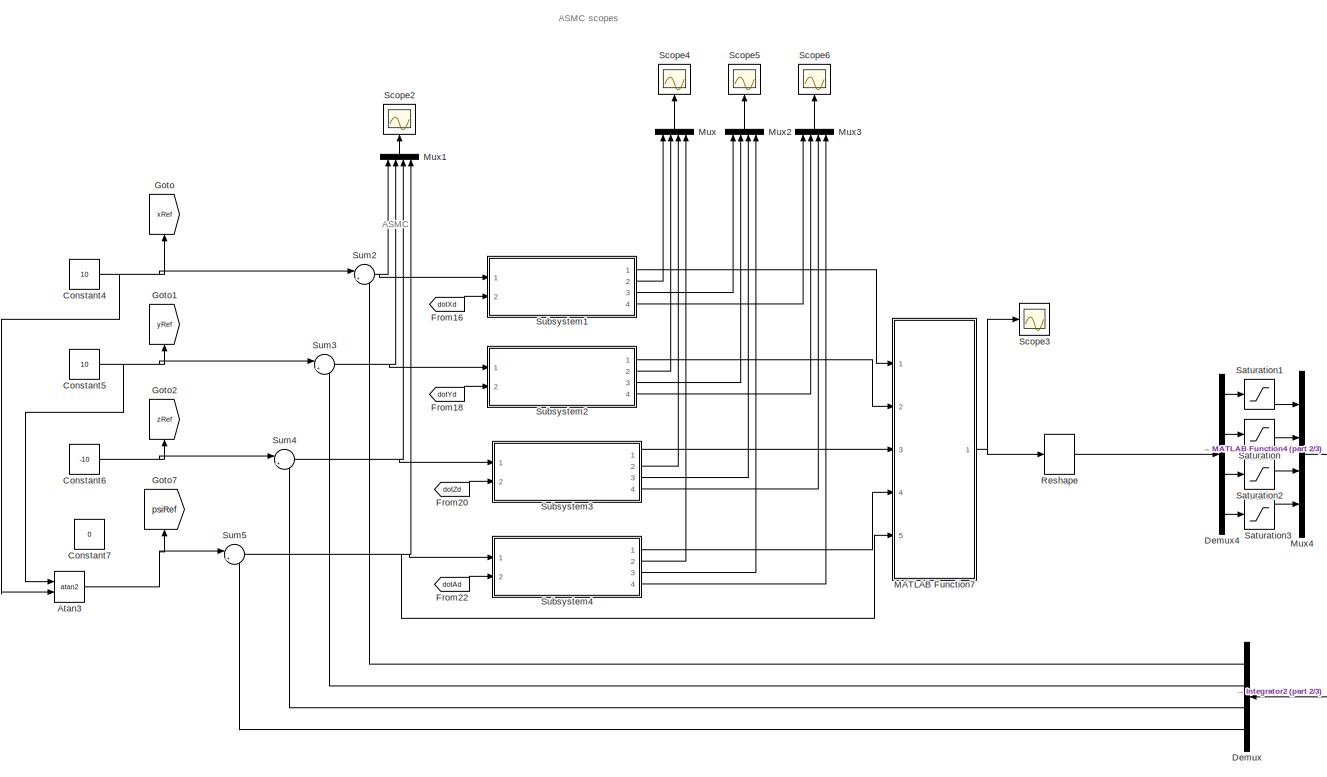
[diagram: root canvas - part 1/3, center side, full height]
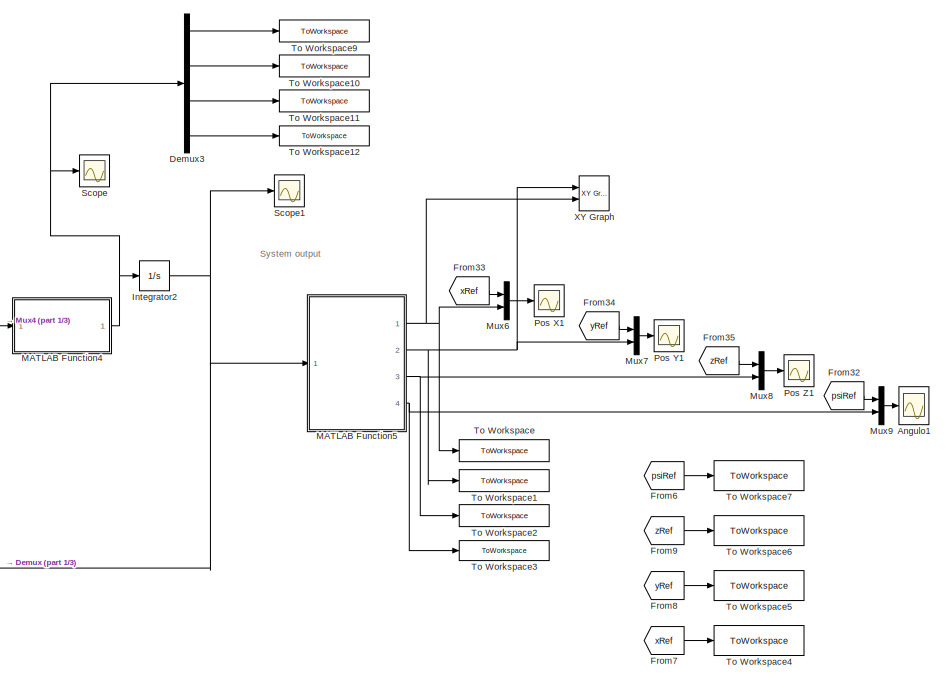
[diagram: root canvas - part 2/3, right side, full height]
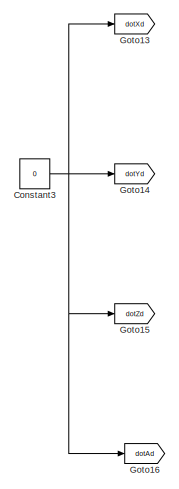
[diagram: root canvas - part 3/3, bottom left region]
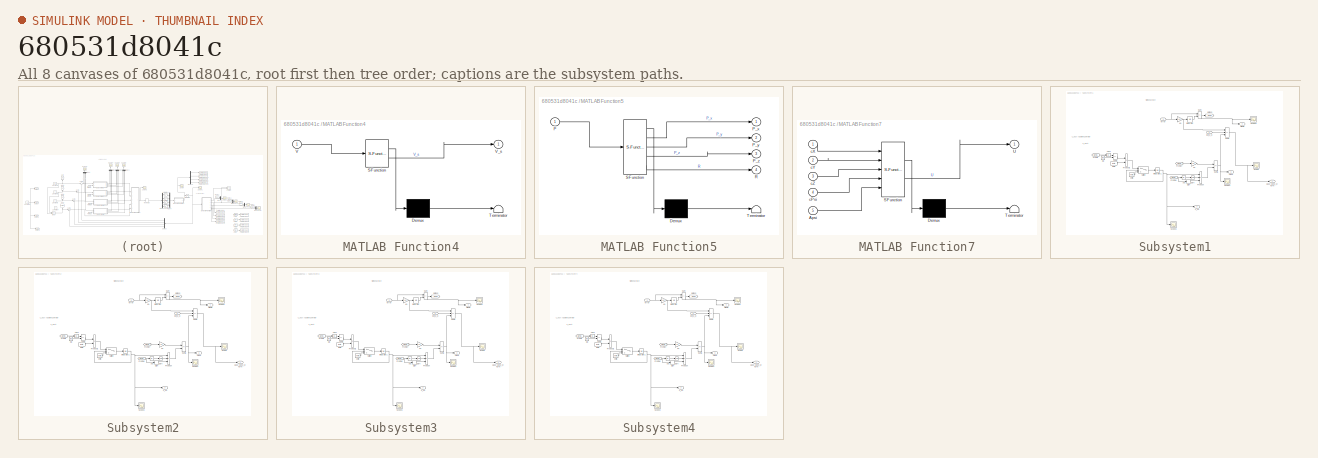
[diagram: thumbnail index - all 8 canvases of the model, root first then tree order]
MODEL slx_680531d8041c
KIND model
CONFIG AbsTol = auto
CONFIG EnableMultiTasking = off
CONFIG FixedStep = 0.001
CONFIG MaxStep = auto
CONFIG MinStep = auto
CONFIG RelTol = 1e-3
CONFIG SampleTimeConstraint = Unconstrained
CONFIG Solver = ode1
CONFIG SolverName = ode1
CONFIG StartTime = 0.0
CONFIG StopTime = 50
BLOCK [Scope] Angulo1
  Floating = off
  NumInputPorts = 1
  Ports = [1]
  ScopeSpecificationString = Simulink.scopes.TimeScopeBlockCfg('CurrentConfiguration', extmgr.ConfigurationSet(extmgr.Configuration('Core','General UI',true),extmgr.Configuration('Core','Source UI',true),extmgr.Configuration('Sources','WiredSimulink',true,'DataLoggingVariableName','ScopeData4'),extmgr.Configuration('Visuals','Time Domain',true,'SerializedDisplays',{struct('MinYLimReal','-0.09866','MaxYLimReal','0.88792','YLab...<+1540ch>
BLOCK [Trigonometry] Atan3
  Operator = atan2
  Ports = [2, 1]
BLOCK [Constant] Constant3
  Value = 0
BLOCK [Constant] Constant4
  Value = 10
BLOCK [Constant] Constant5
  Value = 10
BLOCK [Constant] Constant6
  Value = -10
BLOCK [Constant] Constant7
  Commented = on
  Value = 0
BLOCK [Demux] Demux
  Ports = [1, 4]
BLOCK [Demux] Demux3
  Ports = [1, 4]
BLOCK [Demux] Demux4
  Ports = [1, 4]
BLOCK [From] From16
  GotoTag = dotXd
BLOCK [From] From18
  GotoTag = dotYd
BLOCK [From] From20
  GotoTag = dotZd
BLOCK [From] From22
  GotoTag = dotAd
BLOCK [From] From32
  GotoTag = psiRef
BLOCK [From] From33
  GotoTag = xRef
BLOCK [From] From34
  GotoTag = yRef
BLOCK [From] From35
  GotoTag = zRef
BLOCK [From] From6
  GotoTag = psiRef
BLOCK [From] From7
  GotoTag = xRef
BLOCK [From] From8
  GotoTag = yRef
BLOCK [From] From9
  GotoTag = zRef
BLOCK [Goto] Goto
  GotoTag = xRef
  NameLocation = right
BLOCK [Goto] Goto1
  GotoTag = yRef
  NameLocation = right
BLOCK [Goto] Goto13
  GotoTag = dotXd
BLOCK [Goto] Goto14
  GotoTag = dotYd
BLOCK [Goto] Goto15
  GotoTag = dotZd
BLOCK [Goto] Goto16
  GotoTag = dotAd
BLOCK [Goto] Goto2
  GotoTag = zRef
  NameLocation = right
BLOCK [Goto] Goto7
  GotoTag = psiRef
  NameLocation = right
BLOCK [Integrator] Integrator2
  Ports = [1, 1]
BLOCK [SubSystem] MATLAB Function4
  ErrorFcn = Stateflow.Translate.translate
  MinAlgLoopOccurrences = on
  PermitHierarchicalResolution = ExplicitOnly
  Ports = [1, 1]
  RequestExecContextInheritance = off
  SFBlockType = MATLAB Function
  TreatAsAtomicUnit = on
BLOCK [Demux] MATLAB Function4/ Demux 
  Outputs = 1
  Ports = [1, 1]
BLOCK [S-Function] MATLAB Function4/ SFunction 
  EnableBusSupport = on
  FunctionName = sf_sfun
  PortCounts = [1 2]
  Ports = [1, 2]
  SFcnIsStateOwnerBlock = off
  SFunctionDeploymentMode = off
  Tag = Stateflow S-Function 5
BLOCK [Terminator] MATLAB Function4/ Terminator 
BLOCK [Inport] MATLAB Function4/V
BLOCK [Outport] MATLAB Function4/V_s
BLOCK [SubSystem] MATLAB Function5
  ErrorFcn = Stateflow.Translate.translate
  PermitHierarchicalResolution = ExplicitOnly
  Ports = [1, 4]
  RequestExecContextInheritance = off
  SFBlockType = MATLAB Function
  TreatAsAtomicUnit = on
BLOCK [Demux] MATLAB Function5/ Demux 
  Outputs = 1
  Ports = [1, 1]
BLOCK [S-Function] MATLAB Function5/ SFunction 
  EnableBusSupport = on
  FunctionName = sf_sfun
  PortCounts = [1 5]
  Ports = [1, 5]
  SFcnIsStateOwnerBlock = off
  SFunctionDeploymentMode = off
  Tag = Stateflow S-Function 6
BLOCK [Terminator] MATLAB Function5/ Terminator 
BLOCK [Inport] MATLAB Function5/P
BLOCK [Outport] MATLAB Function5/P_x
BLOCK [Outport] MATLAB Function5/P_y
  Port = 2
BLOCK [Outport] MATLAB Function5/P_z
  Port = 3
BLOCK [Outport] MATLAB Function5/R
  Port = 4
BLOCK [SubSystem] MATLAB Function7
  ErrorFcn = Stateflow.Translate.translate
  MinAlgLoopOccurrences = on
  PermitHierarchicalResolution = ExplicitOnly
  Ports = [5, 1]
  RequestExecContextInheritance = off
  SFBlockType = MATLAB Function
  TreatAsAtomicUnit = on
BLOCK [Demux] MATLAB Function7/ Demux 
  Outputs = 1
  Ports = [1, 1]
BLOCK [S-Function] MATLAB Function7/ SFunction 
  EnableBusSupport = on
  FunctionName = sf_sfun
  PortCounts = [5 2]
  Ports = [5, 2]
  SFcnIsStateOwnerBlock = off
  SFunctionDeploymentMode = off
  Tag = Stateflow S-Function 7
BLOCK [Terminator] MATLAB Function7/ Terminator 
BLOCK [Inport] MATLAB Function7/Apsi
  Port = 5
BLOCK [Outport] MATLAB Function7/U
BLOCK [Inport] MATLAB Function7/cPsi
  Port = 4
BLOCK [Inport] MATLAB Function7/cX
BLOCK [Inport] MATLAB Function7/cY
  Port = 2
BLOCK [Inport] MATLAB Function7/cZ
  Port = 3
BLOCK [Mux] Mux
  DisplayOption = bar
  NameLocation = right
  Ports = [4, 1]
BLOCK [Mux] Mux1
  DisplayOption = bar
  NameLocation = right
  Ports = [4, 1]
BLOCK [Mux] Mux2
  DisplayOption = bar
  NameLocation = right
  Ports = [4, 1]
BLOCK [Mux] Mux3
  DisplayOption = bar
  NameLocation = right
  Ports = [4, 1]
BLOCK [Mux] Mux4
  DisplayOption = bar
  Ports = [4, 1]
BLOCK [Mux] Mux6
  DisplayOption = bar
  Inputs = 2
  Ports = [2, 1]
BLOCK [Mux] Mux7
  DisplayOption = bar
  Inputs = 2
  Ports = [2, 1]
BLOCK [Mux] Mux8
  DisplayOption = bar
  Inputs = 2
  Ports = [2, 1]
BLOCK [Mux] Mux9
  DisplayOption = bar
  Inputs = 2
  Ports = [2, 1]
BLOCK [Scope] Pos X1
  Floating = off
  NumInputPorts = 1
  Ports = [1]
  ScopeSpecificationString = Simulink.scopes.TimeScopeBlockCfg('CurrentConfiguration', extmgr.ConfigurationSet(extmgr.Configuration('Core','General UI',true),extmgr.Configuration('Core','Source UI',true),extmgr.Configuration('Sources','WiredSimulink',true,'DataLoggingVariableName','ScopeData1'),extmgr.Configuration('Visuals','Time Domain',true,'SerializedDisplays',{struct('MinYLimReal','-1.25917','MaxYLimReal','11.33253','YLa...<+1537ch>
BLOCK [Scope] Pos Y1
  Floating = off
  NumInputPorts = 1
  Ports = [1]
  ScopeSpecificationString = Simulink.scopes.TimeScopeBlockCfg('CurrentConfiguration', extmgr.ConfigurationSet(extmgr.Configuration('Core','General UI',true),extmgr.Configuration('Core','Source UI',true),extmgr.Configuration('Sources','WiredSimulink',true,'DataLoggingVariableName','ScopeData2'),extmgr.Configuration('Visuals','Time Domain',true,'SerializedDisplays',{struct('MinYLimReal','-1.26114','MaxYLimReal','11.35028','YLa...<+1538ch>
BLOCK [Scope] Pos Z1
  Floating = off
  NumInputPorts = 1
  Ports = [1]
  ScopeSpecificationString = Simulink.scopes.TimeScopeBlockCfg('CurrentConfiguration', extmgr.ConfigurationSet(extmgr.Configuration('Core','General UI',true),extmgr.Configuration('Core','Source UI',true),extmgr.Configuration('Sources','WiredSimulink',true,'DataLoggingVariableName','ScopeData3'),extmgr.Configuration('Visuals','Time Domain',true,'SerializedDisplays',{struct('MinYLimReal','-11.35196','MaxYLimReal','1.26133','YLa...<+1523ch>
BLOCK [Reshape] Reshape
  OutputDimensionality = Customize
  OutputDimensions = [4,1]
  Ports = [1, 1]
BLOCK [Saturate] Saturation
  LowerLimit = -1.5
  UpperLimit = 1.5
BLOCK [Saturate] Saturation1
  LowerLimit = -0.94
  UpperLimit = 0.94
BLOCK [Saturate] Saturation2
  LowerLimit = -0.66
  UpperLimit = 0.671
BLOCK [Saturate] Saturation3
  LowerLimit = -4.245
  UpperLimit = 4.245
BLOCK [Scope] Scope
  Floating = off
  NumInputPorts = 1
  Ports = [1]
  ScopeSpecificationString = Simulink.scopes.TimeScopeBlockCfg('CurrentConfiguration', extmgr.ConfigurationSet(extmgr.Configuration('Core','General UI',true),extmgr.Configuration('Core','Source UI',true),extmgr.Configuration('Sources','WiredSimulink',true,'DataLoggingVariableName','ScopeData1'),extmgr.Configuration('Visuals','Time Domain',true,'SerializedDisplays',{struct('MinYLimReal','-0.91318','MaxYLimReal','1.61861','YLab...<+1563ch>
BLOCK [Scope] Scope1
  Floating = off
  NumInputPorts = 1
  Ports = [1]
  ScopeSpecificationString = Simulink.scopes.TimeScopeBlockCfg('CurrentConfiguration', extmgr.ConfigurationSet(extmgr.Configuration('Core','General UI',true),extmgr.Configuration('Core','Source UI',true),extmgr.Configuration('Sources','WiredSimulink',true,'DataLoggingVariableName','ScopeData2'),extmgr.Configuration('Visuals','Time Domain',true,'SerializedDisplays',{struct('MinYLimReal','-12.61519','MaxYLimReal','12.63038','YL...<+1570ch>
BLOCK [Scope] Scope2
  Floating = off
  NameLocation = right
  NumInputPorts = 1
  Ports = [1]
  ScopeSpecificationString = Simulink.scopes.TimeScopeBlockCfg('CurrentConfiguration', extmgr.ConfigurationSet(extmgr.Configuration('Core','General UI',true),extmgr.Configuration('Core','Source UI',true),extmgr.Configuration('Sources','WiredSimulink',true,'DataLoggingVariableName','ScopeData1'),extmgr.Configuration('Visuals','Time Domain',true,'SerializedDisplays',{struct('MinYLimReal','-12.5','MaxYLimReal','12.5','YLabelReal...<+1542ch>
BLOCK [Scope] Scope3
  Floating = off
  NumInputPorts = 1
  Ports = [1]
  ScopeSpecificationString = Simulink.scopes.TimeScopeBlockCfg('CurrentConfiguration', extmgr.ConfigurationSet(extmgr.Configuration('Core','General UI',true),extmgr.Configuration('Core','Source UI',true),extmgr.Configuration('Sources','WiredSimulink',true,'DataLoggingVariableName','ScopeData2'),extmgr.Configuration('Visuals','Time Domain',true,'SerializedDisplays',{struct('MinYLimReal','-1.86856','MaxYLimReal','2.205','YLabel...<+1555ch>
BLOCK [Scope] Scope4
  Floating = off
  NameLocation = right
  NumInputPorts = 1
  Ports = [1]
  ScopeSpecificationString = Simulink.scopes.TimeScopeBlockCfg('CurrentConfiguration', extmgr.ConfigurationSet(extmgr.Configuration('Core','General UI',true),extmgr.Configuration('Core','Source UI',true),extmgr.Configuration('Sources','WiredSimulink',true,'DataLoggingVariableName','ScopeData1'),extmgr.Configuration('Visuals','Time Domain',true,'SerializedDisplays',{struct('MinYLimReal','-0.10773','MaxYLimReal','0.96953','YLab...<+1560ch>
BLOCK [Scope] Scope5
  Floating = off
  NameLocation = right
  NumInputPorts = 1
  Ports = [1]
  ScopeSpecificationString = Simulink.scopes.TimeScopeBlockCfg('CurrentConfiguration', extmgr.ConfigurationSet(extmgr.Configuration('Core','General UI',true),extmgr.Configuration('Core','Source UI',true),extmgr.Configuration('Sources','WiredSimulink',true,'DataLoggingVariableName','ScopeData2'),extmgr.Configuration('Visuals','Time Domain',true,'SerializedDisplays',{struct('MinYLimReal','-2.2112','MaxYLimReal','1.864','YLabelR...<+1555ch>
BLOCK [Scope] Scope6
  Floating = off
  NameLocation = right
  NumInputPorts = 1
  Ports = [1]
  ScopeSpecificationString = Simulink.scopes.TimeScopeBlockCfg('CurrentConfiguration', extmgr.ConfigurationSet(extmgr.Configuration('Core','General UI',true),extmgr.Configuration('Core','Source UI',true),extmgr.Configuration('Sources','WiredSimulink',true,'DataLoggingVariableName','ScopeData3'),extmgr.Configuration('Visuals','Time Domain',true,'SerializedDisplays',{struct('MinYLimReal','-12.50075','MaxYLimReal','12.50671','YL...<+1550ch>
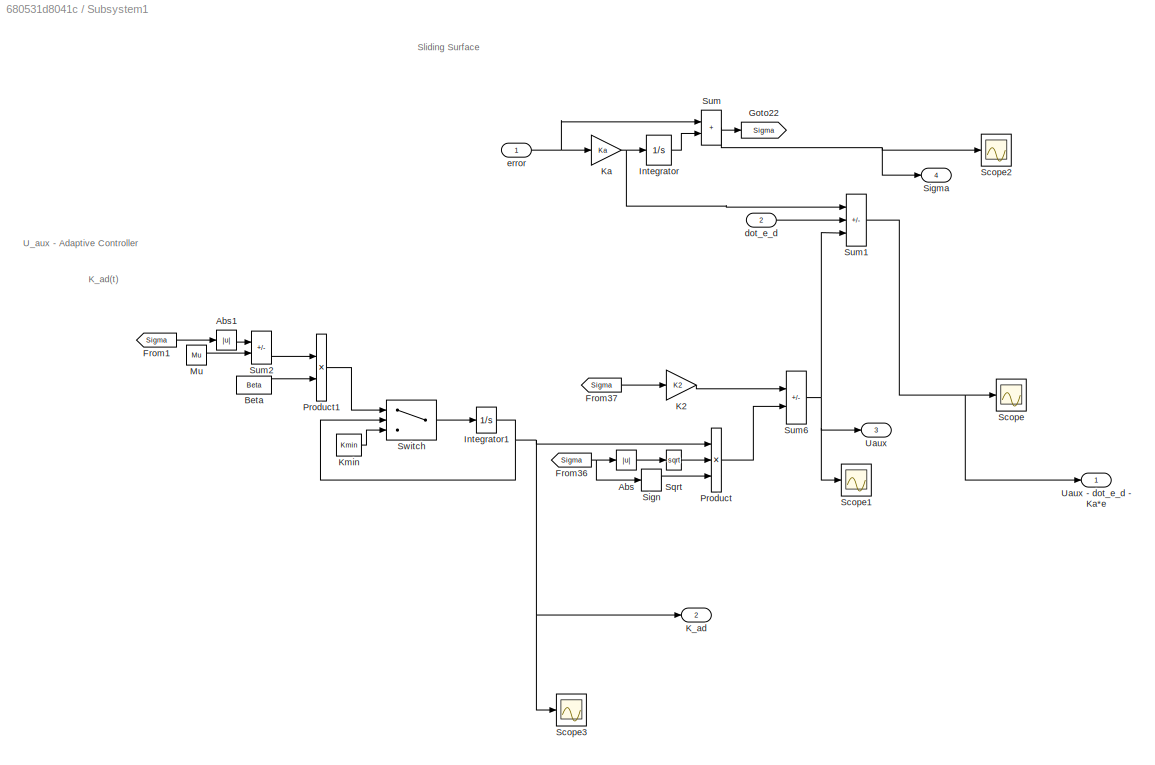
BLOCK [SubSystem] Subsystem1
  Ports = [2, 4]
  RequestExecContextInheritance = off
BLOCK [Abs] Subsystem1/Abs
  SaturateOnIntegerOverflow = off
BLOCK [Abs] Subsystem1/Abs1
  SaturateOnIntegerOverflow = off
BLOCK [Constant] Subsystem1/Beta
  Value = Beta
BLOCK [From] Subsystem1/From1
  GotoTag = Sigma
BLOCK [From] Subsystem1/From36
  GotoTag = Sigma
BLOCK [From] Subsystem1/From37
  GotoTag = Sigma
BLOCK [Goto] Subsystem1/Goto22
  GotoTag = Sigma
BLOCK [Integrator] Subsystem1/Integrator
  Ports = [1, 1]
BLOCK [Integrator] Subsystem1/Integrator1
  Ports = [1, 1]
BLOCK [Gain] Subsystem1/K2
  Gain = K2
BLOCK [Outport] Subsystem1/K_ad
  Port = 2
BLOCK [Gain] Subsystem1/Ka
  Gain = Ka
BLOCK [Constant] Subsystem1/Kmin
  Value = Kmin
BLOCK [Constant] Subsystem1/Mu
  Value = Mu
BLOCK [Product] Subsystem1/Product
  Inputs = 3
  Ports = [3, 1]
BLOCK [Product] Subsystem1/Product1
  Ports = [2, 1]
BLOCK [Scope] Subsystem1/Scope
  Floating = off
  NumInputPorts = 1
  Ports = [1]
  ScopeSpecificationString = Simulink.scopes.TimeScopeBlockCfg('CurrentConfiguration', extmgr.ConfigurationSet(extmgr.Configuration('Core','General UI',true),extmgr.Configuration('Core','Source UI',true),extmgr.Configuration('Sources','WiredSimulink',true,'DataLoggingVariableName','ScopeData1'),extmgr.Configuration('Visuals','Time Domain',true,'SerializedDisplays',{struct('MinYLimReal','-8288.33094','MaxYLimReal','11331.24669...<+1389ch>  <repeated x4 — deduplicated; at blocks: Scope>
BLOCK [Scope] Subsystem1/Scope1
  Floating = off
  NumInputPorts = 1
  Ports = [1]
  ScopeSpecificationString = Simulink.scopes.TimeScopeBlockCfg('CurrentConfiguration', extmgr.ConfigurationSet(extmgr.Configuration('Core','General UI',true),extmgr.Configuration('Core','Source UI',true),extmgr.Configuration('Sources','WiredSimulink',true,'DataLoggingVariableName','ScopeData3'),extmgr.Configuration('Visuals','Time Domain',true,'SerializedDisplays',{struct('MinYLimReal','-51.67722','MaxYLimReal','13.73033','YL...<+1450ch>  <repeated x4 — deduplicated; at blocks: Scope1>
BLOCK [Scope] Subsystem1/Scope2
  Floating = off
  NumInputPorts = 1
  Ports = [1]
  ScopeSpecificationString = Simulink.scopes.TimeScopeBlockCfg('CurrentConfiguration', extmgr.ConfigurationSet(extmgr.Configuration('Core','General UI',true),extmgr.Configuration('Core','Source UI',true),extmgr.Configuration('Sources','WiredSimulink',true,'DataLoggingVariableName','ScopeData4'),extmgr.Configuration('Visuals','Time Domain',true,'SerializedDisplays',{struct('MinYLimReal','-142.84838','MaxYLimReal','177.58054','...<+1405ch>  <repeated x4 — deduplicated; at blocks: Scope2>
BLOCK [Scope] Subsystem1/Scope3
  Floating = off
  NumInputPorts = 1
  Ports = [1]
  ScopeSpecificationString = Simulink.scopes.TimeScopeBlockCfg('CurrentConfiguration', extmgr.ConfigurationSet(extmgr.Configuration('Core','General UI',true),extmgr.Configuration('Core','Source UI',true),extmgr.Configuration('Sources','WiredSimulink',true,'DataLoggingVariableName','ScopeData1'),extmgr.Configuration('Visuals','Time Domain',true,'SerializedDisplays',{struct('MinYLimReal','-0.36974','MaxYLimReal','0.20579','YLab...<+1443ch>  <repeated x4 — deduplicated; at blocks: Scope3>
BLOCK [Outport] Subsystem1/Sigma
  Port = 4
BLOCK [Signum] Subsystem1/Sign
BLOCK [Sqrt] Subsystem1/Sqrt
BLOCK [Sum] Subsystem1/Sum
  IconShape = rectangular
  Ports = [2, 1]
BLOCK [Sum] Subsystem1/Sum1
  IconShape = rectangular
  Inputs = --+
  Ports = [3, 1]
BLOCK [Sum] Subsystem1/Sum2
  IconShape = rectangular
  Inputs = +-
  Ports = [2, 1]
BLOCK [Sum] Subsystem1/Sum6
  IconShape = rectangular
  Inputs = --
  Ports = [2, 1]
BLOCK [Switch] Subsystem1/Switch
  Criteria = u2 > Threshold
  InputSameDT = off
  SaturateOnIntegerOverflow = off
  Threshold = Kmin
BLOCK [Outport] Subsystem1/Uaux
  Port = 3
BLOCK [Outport] Subsystem1/Uaux - dot_e_d - Ka*e
BLOCK [Inport] Subsystem1/dot_e_d
  Port = 2
BLOCK [Inport] Subsystem1/error
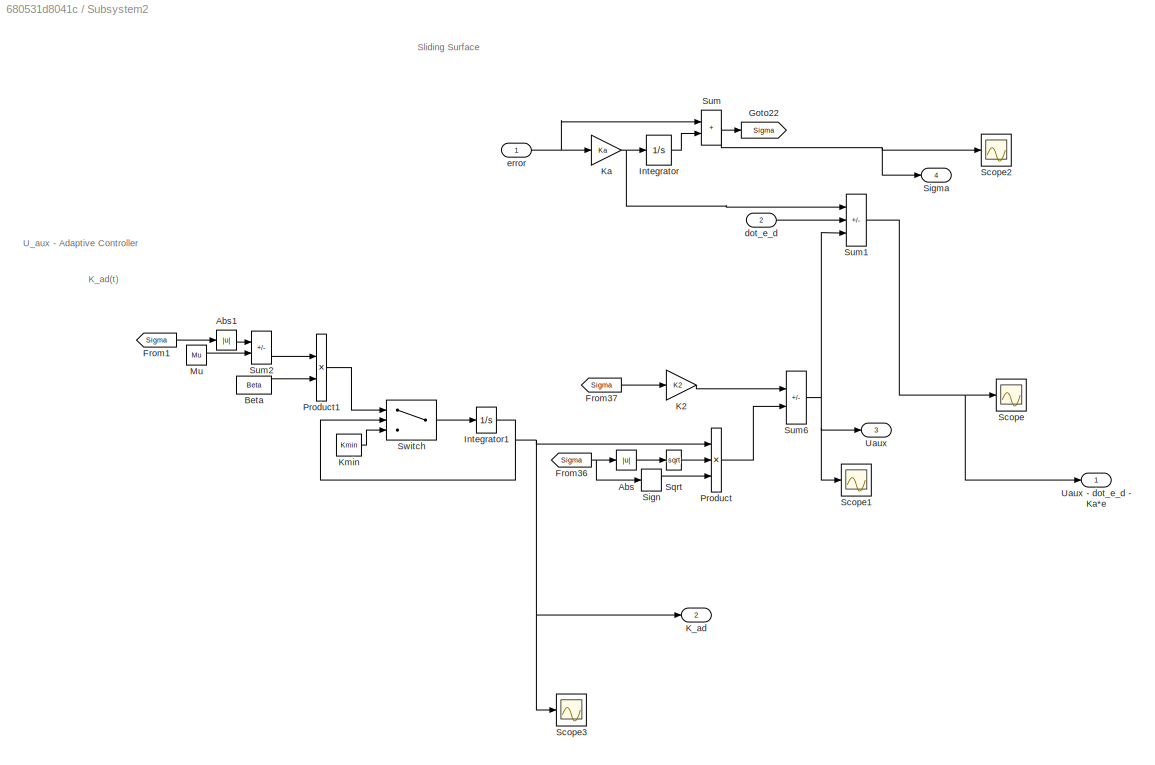
BLOCK [SubSystem] Subsystem2
  Ports = [2, 4]
  RequestExecContextInheritance = off
BLOCK [Abs] Subsystem2/Abs
  SaturateOnIntegerOverflow = off
BLOCK [Abs] Subsystem2/Abs1
  SaturateOnIntegerOverflow = off
BLOCK [Constant] Subsystem2/Beta
  Value = Beta
BLOCK [From] Subsystem2/From1
  GotoTag = Sigma
BLOCK [From] Subsystem2/From36
  GotoTag = Sigma
BLOCK [From] Subsystem2/From37
  GotoTag = Sigma
BLOCK [Goto] Subsystem2/Goto22
  GotoTag = Sigma
BLOCK [Integrator] Subsystem2/Integrator
  Ports = [1, 1]
BLOCK [Integrator] Subsystem2/Integrator1
  Ports = [1, 1]
BLOCK [Gain] Subsystem2/K2
  Gain = K2
BLOCK [Outport] Subsystem2/K_ad
  Port = 2
BLOCK [Gain] Subsystem2/Ka
  Gain = Ka
BLOCK [Constant] Subsystem2/Kmin
  Value = Kmin
BLOCK [Constant] Subsystem2/Mu
  Value = Mu
BLOCK [Product] Subsystem2/Product
  Inputs = 3
  Ports = [3, 1]
BLOCK [Product] Subsystem2/Product1
  Ports = [2, 1]
BLOCK [Scope] Subsystem2/Scope
  Floating = off
  NumInputPorts = 1
  Ports = [1]
BLOCK [Scope] Subsystem2/Scope1
  Floating = off
  NumInputPorts = 1
  Ports = [1]
BLOCK [Scope] Subsystem2/Scope2
  Floating = off
  NumInputPorts = 1
  Ports = [1]
BLOCK [Scope] Subsystem2/Scope3
  Floating = off
  NumInputPorts = 1
  Ports = [1]
BLOCK [Outport] Subsystem2/Sigma
  Port = 4
BLOCK [Signum] Subsystem2/Sign
BLOCK [Sqrt] Subsystem2/Sqrt
BLOCK [Sum] Subsystem2/Sum
  IconShape = rectangular
  Ports = [2, 1]
BLOCK [Sum] Subsystem2/Sum1
  IconShape = rectangular
  Inputs = --+
  Ports = [3, 1]
BLOCK [Sum] Subsystem2/Sum2
  IconShape = rectangular
  Inputs = +-
  Ports = [2, 1]
BLOCK [Sum] Subsystem2/Sum6
  IconShape = rectangular
  Inputs = --
  Ports = [2, 1]
BLOCK [Switch] Subsystem2/Switch
  Criteria = u2 > Threshold
  InputSameDT = off
  SaturateOnIntegerOverflow = off
  Threshold = Kmin
BLOCK [Outport] Subsystem2/Uaux
  Port = 3
BLOCK [Outport] Subsystem2/Uaux - dot_e_d - Ka*e
BLOCK [Inport] Subsystem2/dot_e_d
  Port = 2
BLOCK [Inport] Subsystem2/error
BLOCK [SubSystem] Subsystem3
  Ports = [2, 4]
  RequestExecContextInheritance = off
BLOCK [Abs] Subsystem3/Abs
  SaturateOnIntegerOverflow = off
BLOCK [Abs] Subsystem3/Abs1
  SaturateOnIntegerOverflow = off
BLOCK [Constant] Subsystem3/Beta
  Value = Beta
BLOCK [From] Subsystem3/From1
  GotoTag = Sigma
BLOCK [From] Subsystem3/From36
  GotoTag = Sigma
BLOCK [From] Subsystem3/From37
  GotoTag = Sigma
BLOCK [Goto] Subsystem3/Goto22
  GotoTag = Sigma
BLOCK [Integrator] Subsystem3/Integrator
  Ports = [1, 1]
BLOCK [Integrator] Subsystem3/Integrator1
  Ports = [1, 1]
BLOCK [Gain] Subsystem3/K2
  Gain = K2
BLOCK [Outport] Subsystem3/K_ad
  Port = 2
BLOCK [Gain] Subsystem3/Ka
  Gain = Ka
BLOCK [Constant] Subsystem3/Kmin
  Value = Kmin
BLOCK [Constant] Subsystem3/Mu
  Value = Mu
BLOCK [Product] Subsystem3/Product
  Inputs = 3
  Ports = [3, 1]
BLOCK [Product] Subsystem3/Product1
  Ports = [2, 1]
BLOCK [Scope] Subsystem3/Scope
  Floating = off
  NumInputPorts = 1
  Ports = [1]
BLOCK [Scope] Subsystem3/Scope1
  Floating = off
  NumInputPorts = 1
  Ports = [1]
BLOCK [Scope] Subsystem3/Scope2
  Floating = off
  NumInputPorts = 1
  Ports = [1]
BLOCK [Scope] Subsystem3/Scope3
  Floating = off
  NumInputPorts = 1
  Ports = [1]
BLOCK [Outport] Subsystem3/Sigma
  Port = 4
BLOCK [Signum] Subsystem3/Sign
BLOCK [Sqrt] Subsystem3/Sqrt
BLOCK [Sum] Subsystem3/Sum
  IconShape = rectangular
  Ports = [2, 1]
BLOCK [Sum] Subsystem3/Sum1
  IconShape = rectangular
  Inputs = --+
  Ports = [3, 1]
BLOCK [Sum] Subsystem3/Sum2
  IconShape = rectangular
  Inputs = +-
  Ports = [2, 1]
BLOCK [Sum] Subsystem3/Sum6
  IconShape = rectangular
  Inputs = --
  Ports = [2, 1]
BLOCK [Switch] Subsystem3/Switch
  Criteria = u2 > Threshold
  InputSameDT = off
  SaturateOnIntegerOverflow = off
  Threshold = Kmin
BLOCK [Outport] Subsystem3/Uaux
  Port = 3
BLOCK [Outport] Subsystem3/Uaux - dot_e_d - Ka*e
BLOCK [Inport] Subsystem3/dot_e_d
  Port = 2
BLOCK [Inport] Subsystem3/error
BLOCK [SubSystem] Subsystem4
  Ports = [2, 4]
  RequestExecContextInheritance = off
BLOCK [Abs] Subsystem4/Abs
  SaturateOnIntegerOverflow = off
BLOCK [Abs] Subsystem4/Abs1
  SaturateOnIntegerOverflow = off
BLOCK [Constant] Subsystem4/Beta
  Value = Beta
BLOCK [From] Subsystem4/From1
  GotoTag = Sigma
BLOCK [From] Subsystem4/From36
  GotoTag = Sigma
BLOCK [From] Subsystem4/From37
  GotoTag = Sigma
BLOCK [Goto] Subsystem4/Goto22
  GotoTag = Sigma
BLOCK [Integrator] Subsystem4/Integrator
  Ports = [1, 1]
BLOCK [Integrator] Subsystem4/Integrator1
  Ports = [1, 1]
BLOCK [Gain] Subsystem4/K2
  Gain = K2
BLOCK [Outport] Subsystem4/K_ad
  Port = 2
BLOCK [Gain] Subsystem4/Ka
  Gain = Ka
BLOCK [Constant] Subsystem4/Kmin
  Value = Kmin
BLOCK [Constant] Subsystem4/Mu
  Value = Mu
BLOCK [Product] Subsystem4/Product
  Inputs = 3
  Ports = [3, 1]
BLOCK [Product] Subsystem4/Product1
  Ports = [2, 1]
BLOCK [Scope] Subsystem4/Scope
  Floating = off
  NumInputPorts = 1
  Ports = [1]
BLOCK [Scope] Subsystem4/Scope1
  Floating = off
  NumInputPorts = 1
  Ports = [1]
BLOCK [Scope] Subsystem4/Scope2
  Floating = off
  NumInputPorts = 1
  Ports = [1]
BLOCK [Scope] Subsystem4/Scope3
  Floating = off
  NumInputPorts = 1
  Ports = [1]
BLOCK [Outport] Subsystem4/Sigma
  Port = 4
BLOCK [Signum] Subsystem4/Sign
BLOCK [Sqrt] Subsystem4/Sqrt
BLOCK [Sum] Subsystem4/Sum
  IconShape = rectangular
  Ports = [2, 1]
BLOCK [Sum] Subsystem4/Sum1
  IconShape = rectangular
  Inputs = --+
  Ports = [3, 1]
BLOCK [Sum] Subsystem4/Sum2
  IconShape = rectangular
  Inputs = +-
  Ports = [2, 1]
BLOCK [Sum] Subsystem4/Sum6
  IconShape = rectangular
  Inputs = --
  Ports = [2, 1]
BLOCK [Switch] Subsystem4/Switch
  Criteria = u2 > Threshold
  InputSameDT = off
  SaturateOnIntegerOverflow = off
  Threshold = Kmin
BLOCK [Outport] Subsystem4/Uaux
  Port = 3
BLOCK [Outport] Subsystem4/Uaux - dot_e_d - Ka*e
BLOCK [Inport] Subsystem4/dot_e_d
  Port = 2
BLOCK [Inport] Subsystem4/error
BLOCK [Sum] Sum2
  Inputs = |+-
  Ports = [2, 1]
BLOCK [Sum] Sum3
  Inputs = |+-
  Ports = [2, 1]
BLOCK [Sum] Sum4
  Inputs = |+-
  Ports = [2, 1]
BLOCK [Sum] Sum5
  Inputs = |+-
  Ports = [2, 1]
BLOCK [ToWorkspace] To Workspace
  FixptAsFi = on
  MaxDataPoints = inf
  Ports = [1]
  SampleTime = -1
  Save2DSignal = 2-D array (concatenate along first dimension)
  VariableName = x
BLOCK [ToWorkspace] To Workspace1
  FixptAsFi = on
  MaxDataPoints = inf
  Ports = [1]
  SampleTime = -1
  Save2DSignal = 2-D array (concatenate along first dimension)
  VariableName = y
BLOCK [ToWorkspace] To Workspace10
  FixptAsFi = on
  MaxDataPoints = inf
  Ports = [1]
  SampleTime = -1
  Save2DSignal = 2-D array (concatenate along first dimension)
  VariableName = y1
BLOCK [ToWorkspace] To Workspace11
  FixptAsFi = on
  MaxDataPoints = inf
  Ports = [1]
  SampleTime = -1
  Save2DSignal = 2-D array (concatenate along first dimension)
  VariableName = z1
BLOCK [ToWorkspace] To Workspace12
  FixptAsFi = on
  MaxDataPoints = inf
  Ports = [1]
  SampleTime = -1
  Save2DSignal = 2-D array (concatenate along first dimension)
  VariableName = psi1
BLOCK [ToWorkspace] To Workspace2
  FixptAsFi = on
  MaxDataPoints = inf
  Ports = [1]
  SampleTime = -1
  Save2DSignal = 2-D array (concatenate along first dimension)
  VariableName = z
BLOCK [ToWorkspace] To Workspace3
  FixptAsFi = on
  MaxDataPoints = inf
  Ports = [1]
  SampleTime = -1
  Save2DSignal = 2-D array (concatenate along first dimension)
  VariableName = psi
BLOCK [ToWorkspace] To Workspace4
  FixptAsFi = on
  MaxDataPoints = inf
  Ports = [1]
  SampleTime = -1
  Save2DSignal = 2-D array (concatenate along first dimension)
  VariableName = xRef
BLOCK [ToWorkspace] To Workspace5
  FixptAsFi = on
  MaxDataPoints = inf
  Ports = [1]
  SampleTime = -1
  Save2DSignal = 2-D array (concatenate along first dimension)
  VariableName = yRef
BLOCK [ToWorkspace] To Workspace6
  FixptAsFi = on
  MaxDataPoints = inf
  Ports = [1]
  SampleTime = -1
  Save2DSignal = 2-D array (concatenate along first dimension)
  VariableName = zRef
BLOCK [ToWorkspace] To Workspace7
  FixptAsFi = on
  MaxDataPoints = inf
  Ports = [1]
  SampleTime = -1
  Save2DSignal = 2-D array (concatenate along first dimension)
  VariableName = psiRef
BLOCK [ToWorkspace] To Workspace9
  FixptAsFi = on
  MaxDataPoints = inf
  Ports = [1]
  SampleTime = -1
  Save2DSignal = 2-D array (concatenate along first dimension)
  VariableName = x1
BLOCK [Reference] XY Graph  REF=simulink/Sinks/XY Graph
  Ports = [2]
  SourceBlock = simulink/Sinks/XY Graph
  SourceProductBaseCode = SL
  SourceType = XY scope.
ANNOTATION (root): ASMC
ANNOTATION (root): ASMC scopes
ANNOTATION (root): System output
ANNOTATION Subsystem1: K_ad(t)
ANNOTATION Subsystem1: Sliding Surface
ANNOTATION Subsystem1: U_aux - Adaptive Controller
ANNOTATION Subsystem2: K_ad(t)
ANNOTATION Subsystem2: Sliding Surface
ANNOTATION Subsystem2: U_aux - Adaptive Controller
ANNOTATION Subsystem3: K_ad(t)
ANNOTATION Subsystem3: Sliding Surface
ANNOTATION Subsystem3: U_aux - Adaptive Controller
ANNOTATION Subsystem4: K_ad(t)
ANNOTATION Subsystem4: Sliding Surface
ANNOTATION Subsystem4: U_aux - Adaptive Controller
NET Atan3:1 -> Goto7:1, Sum5:1
NET Constant3:1 -> Goto13:1, Goto14:1, Goto15:1, Goto16:1
NET Constant4:1 -> Atan3:2, Goto:1, Sum2:1
NET Constant5:1 -> Atan3:1, Goto1:1, Sum3:1
NET Constant6:1 -> Goto2:1, Sum4:1
LINE Demux3:1 -> To Workspace9:1
LINE Demux3:2 -> To Workspace10:1
LINE Demux3:3 -> To Workspace11:1
LINE Demux3:4 -> To Workspace12:1
LINE Demux4:1 -> Saturation1:1
LINE Demux4:2 -> Saturation:1
LINE Demux4:3 -> Saturation2:1
LINE Demux4:4 -> Saturation3:1
LINE Demux:1 -> Sum2:2
LINE Demux:2 -> Sum3:2
LINE Demux:3 -> Sum4:2
LINE Demux:4 -> Sum5:2
LINE From16:1 -> Subsystem1:2
LINE From18:1 -> Subsystem2:2
LINE From20:1 -> Subsystem3:2
LINE From22:1 -> Subsystem4:2
LINE From32:1 -> Mux9:1
LINE From33:1 -> Mux6:1
LINE From34:1 -> Mux7:1
LINE From35:1 -> Mux8:1
LINE From6:1 -> To Workspace7:1
LINE From7:1 -> To Workspace4:1
LINE From8:1 -> To Workspace5:1
LINE From9:1 -> To Workspace6:1
NET Integrator2:1 -> Demux:1, MATLAB Function5:1, Scope1:1
NET MATLAB Function4:1 -> Demux3:1, Integrator2:1, Scope:1
NET MATLAB Function5:1 -> Mux6:2, To Workspace:1, XY Graph:2
NET MATLAB Function5:2 -> Mux7:2, To Workspace1:1, XY Graph:1
NET MATLAB Function5:3 -> Mux8:2, To Workspace2:1
NET MATLAB Function5:4 -> Mux9:2, To Workspace3:1
NET MATLAB Function7:1 -> Reshape:1, Scope3:1
LINE Mux1:1 -> Scope2:1
LINE Mux2:1 -> Scope5:1
LINE Mux3:1 -> Scope6:1
LINE Mux4:1 -> MATLAB Function4:1
LINE Mux6:1 -> Pos X1:1
LINE Mux7:1 -> Pos Y1:1
LINE Mux8:1 -> Pos Z1:1
LINE Mux9:1 -> Angulo1:1
LINE Mux:1 -> Scope4:1
LINE Reshape:1 -> Demux4:1
LINE Saturation1:1 -> Mux4:1
LINE Saturation2:1 -> Mux4:3
LINE Saturation3:1 -> Mux4:4
LINE Saturation:1 -> Mux4:2
LINE Subsystem1/Abs1:1 -> Subsystem1/Sum2:1
LINE Subsystem1/Abs:1 -> Subsystem1/Sqrt:1
LINE Subsystem1/Beta:1 -> Subsystem1/Product1:2
LINE Subsystem1/From1:1 -> Subsystem1/Abs1:1
NET Subsystem1/From36:1 -> Subsystem1/Abs:1, Subsystem1/Sign:1
LINE Subsystem1/From37:1 -> Subsystem1/K2:1
NET Subsystem1/Integrator1:1 -> Subsystem1/K_ad:1, Subsystem1/Product:1, Subsystem1/Scope3:1, Subsystem1/Switch:2
LINE Subsystem1/Integrator:1 -> Subsystem1/Sum:2
LINE Subsystem1/K2:1 -> Subsystem1/Sum6:1
NET Subsystem1/Ka:1 -> Subsystem1/Integrator:1, Subsystem1/Sum1:1
LINE Subsystem1/Kmin:1 -> Subsystem1/Switch:3
LINE Subsystem1/Mu:1 -> Subsystem1/Sum2:2
LINE Subsystem1/Product1:1 -> Subsystem1/Switch:1
LINE Subsystem1/Product:1 -> Subsystem1/Sum6:2
LINE Subsystem1/Sign:1 -> Subsystem1/Product:3
LINE Subsystem1/Sqrt:1 -> Subsystem1/Product:2
NET Subsystem1/Sum1:1 -> Subsystem1/Scope:1, Subsystem1/Uaux - dot_e_d - Ka*e:1
LINE Subsystem1/Sum2:1 -> Subsystem1/Product1:1
NET Subsystem1/Sum6:1 -> Subsystem1/Scope1:1, Subsystem1/Sum1:3, Subsystem1/Uaux:1
NET Subsystem1/Sum:1 -> Subsystem1/Goto22:1, Subsystem1/Scope2:1, Subsystem1/Sigma:1
LINE Subsystem1/Switch:1 -> Subsystem1/Integrator1:1
LINE Subsystem1/dot_e_d:1 -> Subsystem1/Sum1:2
NET Subsystem1/error:1 -> Subsystem1/Ka:1, Subsystem1/Sum:1
LINE Subsystem1:1 -> MATLAB Function7:1
LINE Subsystem1:2 -> Mux:1
LINE Subsystem1:3 -> Mux2:1
LINE Subsystem1:4 -> Mux3:1
LINE Subsystem2/Abs1:1 -> Subsystem2/Sum2:1
LINE Subsystem2/Abs:1 -> Subsystem2/Sqrt:1
LINE Subsystem2/Beta:1 -> Subsystem2/Product1:2
LINE Subsystem2/From1:1 -> Subsystem2/Abs1:1
NET Subsystem2/From36:1 -> Subsystem2/Abs:1, Subsystem2/Sign:1
LINE Subsystem2/From37:1 -> Subsystem2/K2:1
NET Subsystem2/Integrator1:1 -> Subsystem2/K_ad:1, Subsystem2/Product:1, Subsystem2/Scope3:1, Subsystem2/Switch:2
LINE Subsystem2/Integrator:1 -> Subsystem2/Sum:2
LINE Subsystem2/K2:1 -> Subsystem2/Sum6:1
NET Subsystem2/Ka:1 -> Subsystem2/Integrator:1, Subsystem2/Sum1:1
LINE Subsystem2/Kmin:1 -> Subsystem2/Switch:3
LINE Subsystem2/Mu:1 -> Subsystem2/Sum2:2
LINE Subsystem2/Product1:1 -> Subsystem2/Switch:1
LINE Subsystem2/Product:1 -> Subsystem2/Sum6:2
LINE Subsystem2/Sign:1 -> Subsystem2/Product:3
LINE Subsystem2/Sqrt:1 -> Subsystem2/Product:2
NET Subsystem2/Sum1:1 -> Subsystem2/Scope:1, Subsystem2/Uaux - dot_e_d - Ka*e:1
LINE Subsystem2/Sum2:1 -> Subsystem2/Product1:1
NET Subsystem2/Sum6:1 -> Subsystem2/Scope1:1, Subsystem2/Sum1:3, Subsystem2/Uaux:1
NET Subsystem2/Sum:1 -> Subsystem2/Goto22:1, Subsystem2/Scope2:1, Subsystem2/Sigma:1
LINE Subsystem2/Switch:1 -> Subsystem2/Integrator1:1
LINE Subsystem2/dot_e_d:1 -> Subsystem2/Sum1:2
NET Subsystem2/error:1 -> Subsystem2/Ka:1, Subsystem2/Sum:1
LINE Subsystem2:1 -> MATLAB Function7:2
LINE Subsystem2:2 -> Mux:2
LINE Subsystem2:3 -> Mux2:2
LINE Subsystem2:4 -> Mux3:2
LINE Subsystem3/Abs1:1 -> Subsystem3/Sum2:1
LINE Subsystem3/Abs:1 -> Subsystem3/Sqrt:1
LINE Subsystem3/Beta:1 -> Subsystem3/Product1:2
LINE Subsystem3/From1:1 -> Subsystem3/Abs1:1
NET Subsystem3/From36:1 -> Subsystem3/Abs:1, Subsystem3/Sign:1
LINE Subsystem3/From37:1 -> Subsystem3/K2:1
NET Subsystem3/Integrator1:1 -> Subsystem3/K_ad:1, Subsystem3/Product:1, Subsystem3/Scope3:1, Subsystem3/Switch:2
LINE Subsystem3/Integrator:1 -> Subsystem3/Sum:2
LINE Subsystem3/K2:1 -> Subsystem3/Sum6:1
NET Subsystem3/Ka:1 -> Subsystem3/Integrator:1, Subsystem3/Sum1:1
LINE Subsystem3/Kmin:1 -> Subsystem3/Switch:3
LINE Subsystem3/Mu:1 -> Subsystem3/Sum2:2
LINE Subsystem3/Product1:1 -> Subsystem3/Switch:1
LINE Subsystem3/Product:1 -> Subsystem3/Sum6:2
LINE Subsystem3/Sign:1 -> Subsystem3/Product:3
LINE Subsystem3/Sqrt:1 -> Subsystem3/Product:2
NET Subsystem3/Sum1:1 -> Subsystem3/Scope:1, Subsystem3/Uaux - dot_e_d - Ka*e:1
LINE Subsystem3/Sum2:1 -> Subsystem3/Product1:1
NET Subsystem3/Sum6:1 -> Subsystem3/Scope1:1, Subsystem3/Sum1:3, Subsystem3/Uaux:1
NET Subsystem3/Sum:1 -> Subsystem3/Goto22:1, Subsystem3/Scope2:1, Subsystem3/Sigma:1
LINE Subsystem3/Switch:1 -> Subsystem3/Integrator1:1
LINE Subsystem3/dot_e_d:1 -> Subsystem3/Sum1:2
NET Subsystem3/error:1 -> Subsystem3/Ka:1, Subsystem3/Sum:1
LINE Subsystem3:1 -> MATLAB Function7:3
LINE Subsystem3:2 -> Mux:3
LINE Subsystem3:3 -> Mux2:3
LINE Subsystem3:4 -> Mux3:3
LINE Subsystem4/Abs1:1 -> Subsystem4/Sum2:1
LINE Subsystem4/Abs:1 -> Subsystem4/Sqrt:1
LINE Subsystem4/Beta:1 -> Subsystem4/Product1:2
LINE Subsystem4/From1:1 -> Subsystem4/Abs1:1
NET Subsystem4/From36:1 -> Subsystem4/Abs:1, Subsystem4/Sign:1
LINE Subsystem4/From37:1 -> Subsystem4/K2:1
NET Subsystem4/Integrator1:1 -> Subsystem4/K_ad:1, Subsystem4/Product:1, Subsystem4/Scope3:1, Subsystem4/Switch:2
LINE Subsystem4/Integrator:1 -> Subsystem4/Sum:2
LINE Subsystem4/K2:1 -> Subsystem4/Sum6:1
NET Subsystem4/Ka:1 -> Subsystem4/Integrator:1, Subsystem4/Sum1:1
LINE Subsystem4/Kmin:1 -> Subsystem4/Switch:3
LINE Subsystem4/Mu:1 -> Subsystem4/Sum2:2
LINE Subsystem4/Product1:1 -> Subsystem4/Switch:1
LINE Subsystem4/Product:1 -> Subsystem4/Sum6:2
LINE Subsystem4/Sign:1 -> Subsystem4/Product:3
LINE Subsystem4/Sqrt:1 -> Subsystem4/Product:2
NET Subsystem4/Sum1:1 -> Subsystem4/Scope:1, Subsystem4/Uaux - dot_e_d - Ka*e:1
LINE Subsystem4/Sum2:1 -> Subsystem4/Product1:1
NET Subsystem4/Sum6:1 -> Subsystem4/Scope1:1, Subsystem4/Sum1:3, Subsystem4/Uaux:1
NET Subsystem4/Sum:1 -> Subsystem4/Goto22:1, Subsystem4/Scope2:1, Subsystem4/Sigma:1
LINE Subsystem4/Switch:1 -> Subsystem4/Integrator1:1
LINE Subsystem4/dot_e_d:1 -> Subsystem4/Sum1:2
NET Subsystem4/error:1 -> Subsystem4/Ka:1, Subsystem4/Sum:1
LINE Subsystem4:1 -> MATLAB Function7:4
LINE Subsystem4:2 -> Mux:4
LINE Subsystem4:3 -> Mux2:4
LINE Subsystem4:4 -> Mux3:4
NET Sum2:1 -> Mux1:1, Subsystem1:1
NET Sum3:1 -> Mux1:2, Subsystem2:1
NET Sum4:1 -> Mux1:3, Subsystem3:1
NET Sum5:1 -> MATLAB Function7:5, Mux1:4, Subsystem4:1
note: NET lines group one-source signal fan-out (src -> all destinations, sorted); 1:1 wires keep LINE
CHART MATLAB Function4 states=1 transitions=1
  STATE_LABEL 'eML_blk_kernel()'
  STATE_LABEL 'SCRIPT:\nfunction V_s = Modelo(V)\ndotx = V(1,1)*cos(V(4,1)) - V(2,1)*sin(V(4,1));\ndoty = V(1,1)*sin(V(4,1)) + V(2,1)*cos(V(4,1));\ndotz = V(3,1);\nW = V(4,1);\nV_s = [dotx,doty,dotz,W];\n\n\n'
CHART MATLAB Function5 states=1 transitions=1
  STATE_LABEL 'eML_blk_kernel()'
  STATE_LABEL 'SCRIPT:\nfunction [P_x,P_y,P_z,R] = Posicion(P)\nP_x=P(1,1);\nP_y=P(1,2);\nP_z=P(1,3);\nR=P(1,4);\n'
CHART MATLAB Function7 states=1 transitions=1
  STATE_LABEL 'eML_blk_kernel()'
  STATE_LABEL "SCRIPT:\nfunction U = G(cX,cY,cZ,cPsi,Apsi)\nAux = [cos(Apsi), sin(Apsi), 0, 0;\n       -sin(Apsi), cos(Apsi), 0 , 0;\n       0 , 0 , 1 , 0;\n       0 , 0 , 0 , 1];\nC = [cX,cY,cZ,cPsi]'; \nU = -1*Aux*C;\n\n\n"
CHART  states=0 transitions=0
CHART  states=0 transitions=0
CHART  states=0 transitions=0
